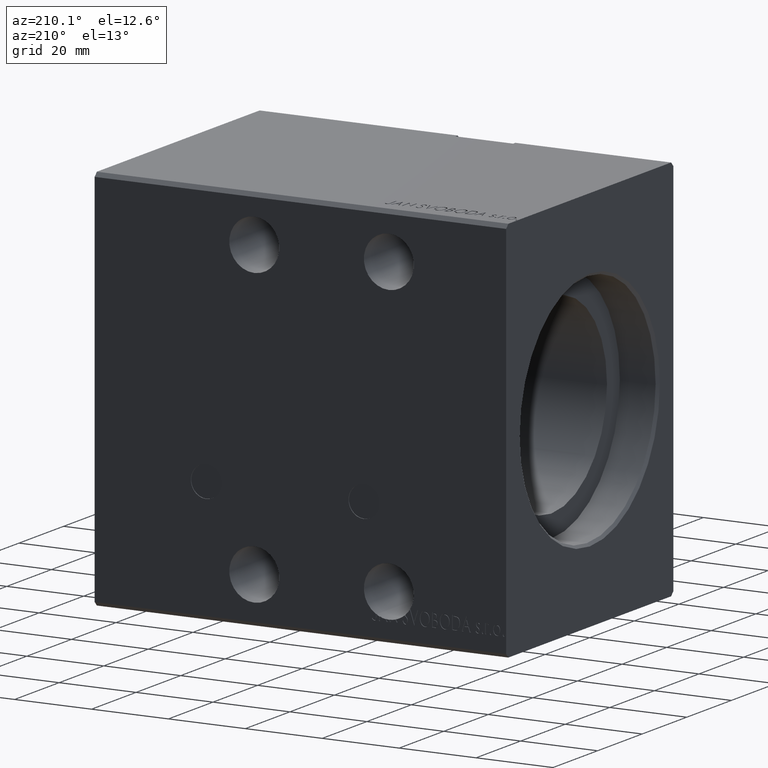
[diagram: clean part render]
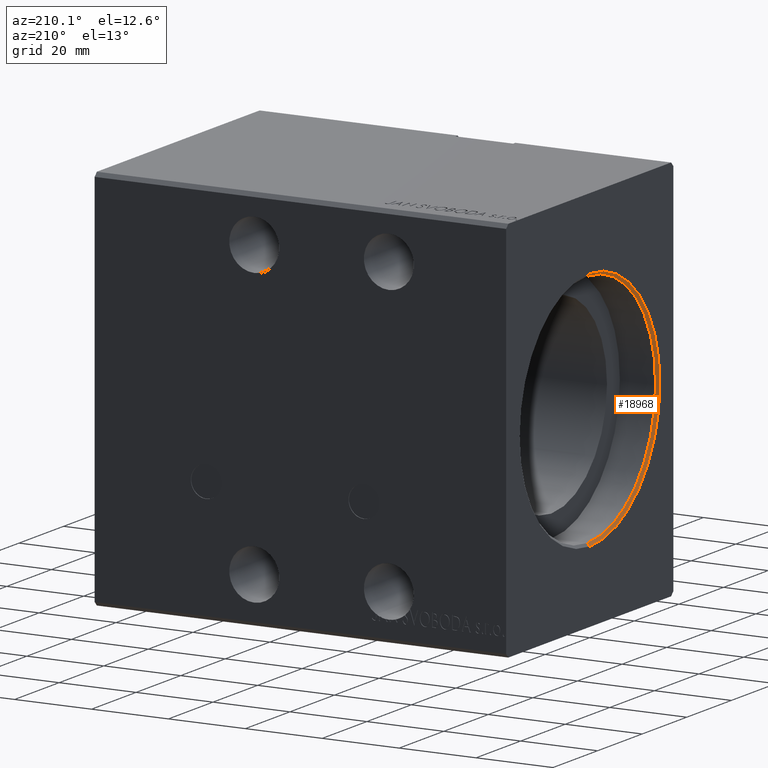
[diagram: same view with one face highlighted and labeled with its STEP entity id]
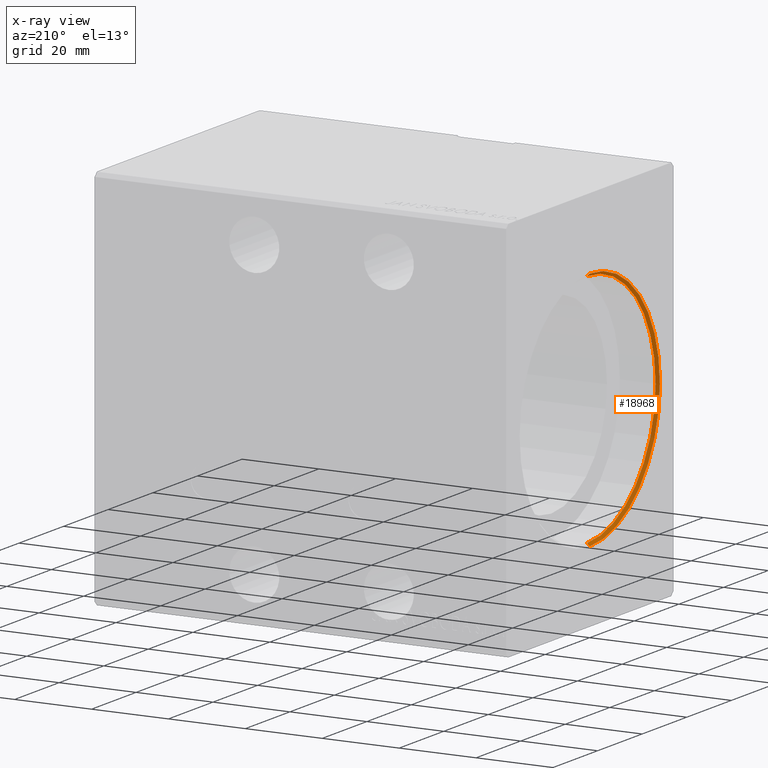
[diagram: x-ray of the same camera — body ghosted, the highlighted face saturated]
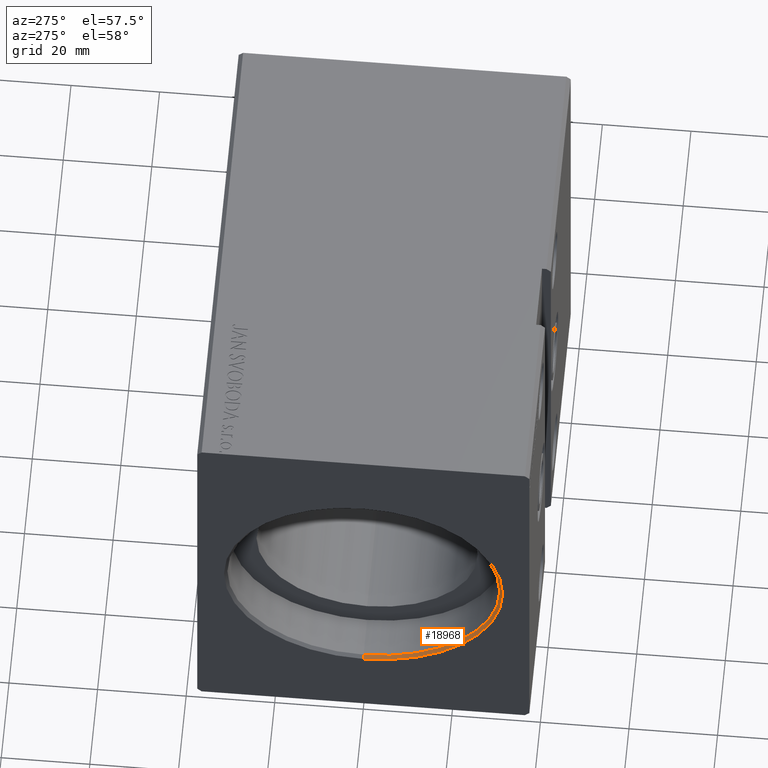
[diagram: same view with one face highlighted and labeled with its STEP entity id]
A machine part, auxiliary view. The second image highlights one B-rep face of the part: STEP entity #18968.
The next image is the same camera in x-ray: the body ghosted, the highlighted face saturated — about 0% of this face is hidden behind the body in this view.
A second angle (auxiliary view) of the same face is appended — the face is thin or edge-on in the first view.
In plain terms, the highlighted conical surface has half-angle 45 deg.
Its self-contained STEP definition (entity closure, byte-faithful):
#4 = CARTESIAN_POINT ( 'NONE',  ( 0.000000000000000000, 3.851514183318427194E-15, -31.45000000000002061 ) ) ;
#705 = ORIENTED_EDGE ( 'NONE', *, *, #5866, .F. ) ;
#944 = EDGE_LOOP ( 'NONE', ( #3948, #22269, #705, #18113 ) ) ;
#3415 = LINE ( 'NONE', #25255, #9468 ) ;
#3948 = ORIENTED_EDGE ( 'NONE', *, *, #14626, .F. ) ;
#5866 = EDGE_CURVE ( 'NONE', #22570, #10680, #23894, .T. ) ;
#8102 = EDGE_CURVE ( 'NONE', #36597, #22570, #3415, .T. ) ;
#9357 = EDGE_CURVE ( 'NONE', #33819, #10680, #25550, .T. ) ;
#9398 = DIRECTION ( 'NONE',  ( -0.7071067811865509034, 0.000000000000000000, 0.7071067811865441310 ) ) ;
#9468 = VECTOR ( 'NONE', #9398, 999.9999999999998863 ) ;
#9581 = CIRCLE ( 'NONE', #38528, 30.75000000000000355 ) ;
#10405 = DIRECTION ( 'NONE',  ( 0.000000000000000000, 0.000000000000000000, -1.000000000000000000 ) ) ;
#10680 = VERTEX_POINT ( 'NONE', #4 ) ;
#14078 = VECTOR ( 'NONE', #28849, 999.9999999999998863 ) ;
#14093 = DIRECTION ( 'NONE',  ( -1.000000000000000000, 0.000000000000000000, 0.000000000000000000 ) ) ;
#14626 = EDGE_CURVE ( 'NONE', #33819, #36597, #9581, .T. ) ;
#15001 = DIRECTION ( 'NONE',  ( 1.000000000000000000, 0.000000000000000000, 0.000000000000000000 ) ) ;
#15458 = CARTESIAN_POINT ( 'NONE',  ( 0.7000000000000234923, 0.000000000000000000, 30.75000000000000355 ) ) ;
#16255 = CONICAL_SURFACE ( 'NONE', #39297, 30.75000000000000355, 0.7853981633974433940 ) ;
#16370 = DIRECTION ( 'NONE',  ( 0.000000000000000000, 0.000000000000000000, 1.000000000000000000 ) ) ;
#18113 = ORIENTED_EDGE ( 'NONE', *, *, #8102, .F. ) ;
#18409 = CARTESIAN_POINT ( 'NONE',  ( 0.7000000000000234923, 3.765788907378110539E-15, -30.75000000000000355 ) ) ;
#18968 = ADVANCED_FACE ( 'NONE', ( #38418 ), #16255, .F. ) ;
#22269 = ORIENTED_EDGE ( 'NONE', *, *, #9357, .T. ) ;
#22570 = VERTEX_POINT ( 'NONE', #22870 ) ;
#22870 = CARTESIAN_POINT ( 'NONE',  ( 0.000000000000000000, 0.000000000000000000, 31.45000000000002061 ) ) ;
#23894 = CIRCLE ( 'NONE', #30491, 31.45000000000002061 ) ;
#23944 = CARTESIAN_POINT ( 'NONE',  ( 0.7000000000000234923, 3.765788907378111328E-15, -30.75000000000000355 ) ) ;
#25255 = CARTESIAN_POINT ( 'NONE',  ( 0.7000000000000234923, 0.000000000000000000, 30.75000000000000355 ) ) ;
#25550 = LINE ( 'NONE', #18409, #14078 ) ;
#26048 = DIRECTION ( 'NONE',  ( -1.000000000000000000, 0.000000000000000000, 0.000000000000000000 ) ) ;
#27781 = DIRECTION ( 'NONE',  ( 0.000000000000000000, 0.000000000000000000, -1.000000000000000000 ) ) ;
#28849 = DIRECTION ( 'NONE',  ( -0.7071067811865509034, 8.659560562354890950E-17, -0.7071067811865441310 ) ) ;
#30491 = AXIS2_PLACEMENT_3D ( 'NONE', #40143, #15001, #27781 ) ;
#33819 = VERTEX_POINT ( 'NONE', #23944 ) ;
#36597 = VERTEX_POINT ( 'NONE', #15458 ) ;
#37805 = CARTESIAN_POINT ( 'NONE',  ( 0.7000000000000234923, 0.000000000000000000, 0.000000000000000000 ) ) ;
#38418 = FACE_OUTER_BOUND ( 'NONE', #944, .T. ) ;
#38528 = AXIS2_PLACEMENT_3D ( 'NONE', #37805, #26048, #10405 ) ;
#39235 = CARTESIAN_POINT ( 'NONE',  ( 0.7000000000000234923, 0.000000000000000000, 0.000000000000000000 ) ) ;
#39297 = AXIS2_PLACEMENT_3D ( 'NONE', #39235, #14093, #16370 ) ;
#40143 = CARTESIAN_POINT ( 'NONE',  ( 0.000000000000000000, 0.000000000000000000, 0.000000000000000000 ) ) ;